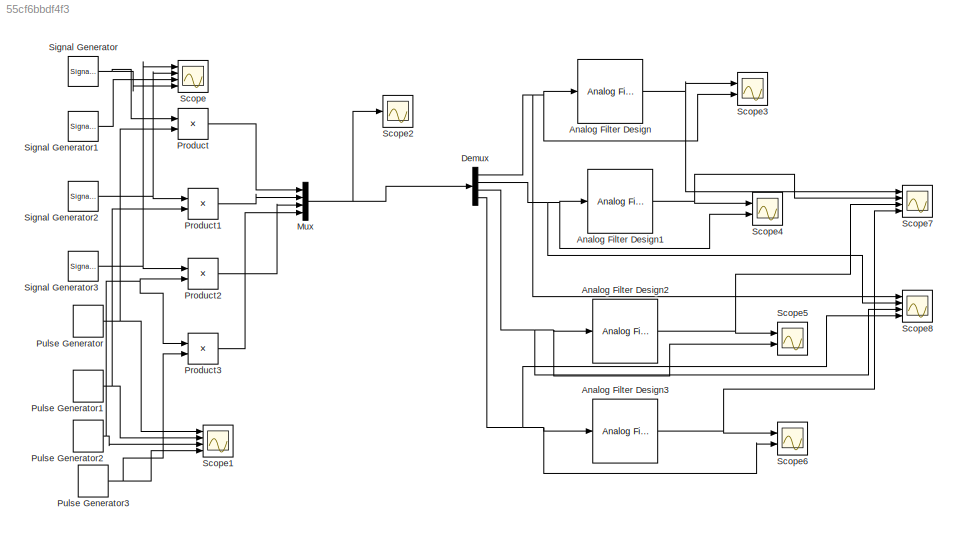
MODEL slx_55cf6bbdf4f3
KIND model
CONFIG AbsTol = auto
CONFIG EnableMultiTasking = off
CONFIG FixedStep = auto
CONFIG MaxStep = auto
CONFIG MinStep = auto
CONFIG RelTol = 1e-3
CONFIG SampleTimeConstraint = Unconstrained
CONFIG Solver = VariableStepAuto
CONFIG SolverName = VariableStepAuto
CONFIG StartTime = 0.0
CONFIG StopTime = 10.0
BLOCK [Reference] Analog Filter Design  REF=dsparch4/Analog
Filter Design
  Ports = [1, 1]
  SourceBlock = dsparch4/Analog\nFilter Design
  SourceProductBaseCode = DS
  SourceProductName = DSP System Toolbox
  SourceType = Analog Filter Design
BLOCK [Reference] Analog Filter Design1  REF=dsparch4/Analog
Filter Design
  Ports = [1, 1]
  SourceBlock = dsparch4/Analog\nFilter Design
  SourceProductBaseCode = DS
  SourceProductName = DSP System Toolbox
  SourceType = Analog Filter Design
BLOCK [Reference] Analog Filter Design2  REF=dsparch4/Analog
Filter Design
  Ports = [1, 1]
  SourceBlock = dsparch4/Analog\nFilter Design
  SourceProductBaseCode = DS
  SourceProductName = DSP System Toolbox
  SourceType = Analog Filter Design
BLOCK [Reference] Analog Filter Design3  REF=dsparch4/Analog
Filter Design
  Ports = [1, 1]
  SourceBlock = dsparch4/Analog\nFilter Design
  SourceProductBaseCode = DS
  SourceProductName = DSP System Toolbox
  SourceType = Analog Filter Design
BLOCK [Demux] Demux
  DisplayOption = bar
  Ports = [1, 4]
BLOCK [Mux] Mux
  DisplayOption = bar
  Ports = [4, 1]
BLOCK [Product] Product
  InputSameDT = off
  OutDataTypeStr = Inherit: Inherit via internal rule
  Ports = [2, 1]
  RndMeth = Floor
  SaturateOnIntegerOverflow = off
BLOCK [Product] Product1
  InputSameDT = off
  OutDataTypeStr = Inherit: Inherit via internal rule
  Ports = [2, 1]
  RndMeth = Floor
  SaturateOnIntegerOverflow = off
BLOCK [Product] Product2
  InputSameDT = off
  OutDataTypeStr = Inherit: Inherit via internal rule
  Ports = [2, 1]
  RndMeth = Floor
  SaturateOnIntegerOverflow = off
BLOCK [Product] Product3
  InputSameDT = off
  OutDataTypeStr = Inherit: Inherit via internal rule
  Ports = [2, 1]
  RndMeth = Floor
  SaturateOnIntegerOverflow = off
BLOCK [DiscretePulseGenerator] Pulse Generator
  Amplitude = 0.1
  Period = 0.1
  Ports = [0, 1]
  PulseType = Time based
  PulseWidth = 5
BLOCK [DiscretePulseGenerator] Pulse Generator1
  Amplitude = 0.2
  Period = 0.1
  Ports = [0, 1]
  PulseType = Time based
  PulseWidth = 5
BLOCK [DiscretePulseGenerator] Pulse Generator2
  Amplitude = 0.3
  Period = 0.1
  Ports = [0, 1]
  PulseType = Time based
  PulseWidth = 5
BLOCK [DiscretePulseGenerator] Pulse Generator3
  Amplitude = 0.4
  Period = 0.1
  Ports = [0, 1]
  PulseType = Time based
  PulseWidth = 5
BLOCK [Scope] Scope
  Floating = off
  NumInputPorts = 4
  Ports = [4]
  ScopeSpecificationString = Simulink.scopes.TimeScopeBlockCfg('CurrentConfiguration', extmgr.ConfigurationSet(extmgr.Configuration('Core','General UI',true),extmgr.Configuration('Core','Source UI',true),extmgr.Configuration('Sources','WiredSimulink',true),extmgr.Configuration('Visuals','Time Domain',true,'SerializedDisplays',{struct('MinYLimReal','-31.41585','MaxYLimReal','31.41575','YLabelReal','','MinYLimMag','0.00000','Ma...<+1402ch>
BLOCK [Scope] Scope1
  Floating = off
  NumInputPorts = 4
  Ports = [4]
  ScopeSpecificationString = Simulink.scopes.TimeScopeBlockCfg('CurrentConfiguration', extmgr.ConfigurationSet(extmgr.Configuration('Core','General UI',true),extmgr.Configuration('Core','Source UI',true),extmgr.Configuration('Sources','WiredSimulink',true,'DataLoggingVariableName','ScopeData1'),extmgr.Configuration('Visuals','Time Domain',true,'SerializedDisplays',{struct('MinYLimReal','-0.05','MaxYLimReal','0.45','YLabelReal...<+1413ch>
BLOCK [Scope] Scope2
  Floating = off
  NumInputPorts = 1
  Ports = [1]
  ScopeSpecificationString = Simulink.scopes.TimeScopeBlockCfg('CurrentConfiguration', extmgr.ConfigurationSet(extmgr.Configuration('Core','General UI',true),extmgr.Configuration('Core','Source UI',true),extmgr.Configuration('Sources','WiredSimulink',true,'DataLoggingVariableName','ScopeData2'),extmgr.Configuration('Visuals','Time Domain',true,'SerializedDisplays',{struct('MinYLimReal','-9.42373','MaxYLimReal','9.42109','YLab...<+1399ch>
BLOCK [Scope] Scope3
  Floating = off
  NumInputPorts = 2
  Ports = [2]
  ScopeSpecificationString = Simulink.scopes.TimeScopeBlockCfg('CurrentConfiguration', extmgr.ConfigurationSet(extmgr.Configuration('Core','General UI',true),extmgr.Configuration('Core','Source UI',true),extmgr.Configuration('Sources','WiredSimulink',true,'DataLoggingVariableName','ScopeData3'),extmgr.Configuration('Visuals','Time Domain',true,'SerializedDisplays',{struct('MinYLimReal','-0.78531','MaxYLimReal','0.78509','YLab...<+1389ch>
BLOCK [Scope] Scope4
  Floating = off
  NumInputPorts = 2
  Ports = [2]
  ScopeSpecificationString = Simulink.scopes.TimeScopeBlockCfg('CurrentConfiguration', extmgr.ConfigurationSet(extmgr.Configuration('Core','General UI',true),extmgr.Configuration('Core','Source UI',true),extmgr.Configuration('Sources','WiredSimulink',true,'DataLoggingVariableName','ScopeData4'),extmgr.Configuration('Visuals','Time Domain',true,'SerializedDisplays',{struct('MinYLimReal','-4.71186','MaxYLimReal','4.71054','YLab...<+1390ch>
BLOCK [Scope] Scope5
  Floating = off
  NumInputPorts = 2
  Ports = [2]
  ScopeSpecificationString = Simulink.scopes.TimeScopeBlockCfg('CurrentConfiguration', extmgr.ConfigurationSet(extmgr.Configuration('Core','General UI',true),extmgr.Configuration('Core','Source UI',true),extmgr.Configuration('Sources','WiredSimulink',true,'DataLoggingVariableName','ScopeData5'),extmgr.Configuration('Visuals','Time Domain',true,'SerializedDisplays',{struct('MinYLimReal','-9.42373','MaxYLimReal','9.42109','YLab...<+1390ch>
BLOCK [Scope] Scope6
  Floating = off
  NumInputPorts = 2
  Ports = [2]
  ScopeSpecificationString = Simulink.scopes.TimeScopeBlockCfg('CurrentConfiguration', extmgr.ConfigurationSet(extmgr.Configuration('Core','General UI',true),extmgr.Configuration('Core','Source UI',true),extmgr.Configuration('Sources','WiredSimulink',true,'DataLoggingVariableName','ScopeData6'),extmgr.Configuration('Visuals','Time Domain',true,'SerializedDisplays',{struct('MinYLimReal','-0.015','MaxYLimReal','0.135','YLabelRe...<+1378ch>
BLOCK [Scope] Scope7
  Floating = off
  NumInputPorts = 4
  Ports = [4]
  ScopeSpecificationString = Simulink.scopes.TimeScopeBlockCfg('CurrentConfiguration', extmgr.ConfigurationSet(extmgr.Configuration('Core','General UI',true),extmgr.Configuration('Core','Source UI',true),extmgr.Configuration('Sources','WiredSimulink',true,'DataLoggingVariableName','ScopeData7'),extmgr.Configuration('Visuals','Time Domain',true,'SerializedDisplays',{struct('MinYLimReal','-0.47127','MaxYLimReal','0.47122','YLab...<+1451ch>
BLOCK [Scope] Scope8
  Floating = off
  NumInputPorts = 4
  Ports = [4]
  ScopeSpecificationString = Simulink.scopes.TimeScopeBlockCfg('CurrentConfiguration', extmgr.ConfigurationSet(extmgr.Configuration('Core','General UI',true),extmgr.Configuration('Core','Source UI',true),extmgr.Configuration('Sources','WiredSimulink',true,'DataLoggingVariableName','ScopeData8'),extmgr.Configuration('Visuals','Time Domain',true,'SerializedDisplays',{struct('MinYLimReal','-9.42373','MaxYLimReal','9.42109','YLab...<+1396ch>
BLOCK [SignalGenerator] Signal Generator
  Amplitude = 2*pi
  Ports = [0, 1]
  Units = rad/sec
BLOCK [SignalGenerator] Signal Generator1
  Amplitude = 4*pi
  Ports = [0, 1]
  Units = rad/sec
BLOCK [SignalGenerator] Signal Generator2
  Amplitude = 6*pi
  Ports = [0, 1]
  Units = rad/sec
BLOCK [SignalGenerator] Signal Generator3
  Amplitude = 8*pi
  Ports = [0, 1]
  Units = rad/sec
NET Analog Filter Design1:1 -> Scope4:1, Scope7:2
NET Analog Filter Design2:1 -> Scope5:1, Scope7:3
NET Analog Filter Design3:1 -> Scope6:1, Scope7:4
NET Analog Filter Design:1 -> Scope3:1, Scope7:1
NET Demux:1 -> Analog Filter Design:1, Scope3:2, Scope8:1
NET Demux:2 -> Analog Filter Design1:1, Scope4:2, Scope8:2
NET Demux:3 -> Analog Filter Design2:1, Scope5:2, Scope8:3
NET Demux:4 -> Analog Filter Design3:1, Scope6:2, Scope8:4
NET Mux:1 -> Demux:1, Scope2:1
LINE Product1:1 -> Mux:2
LINE Product2:1 -> Mux:3
LINE Product3:1 -> Mux:4
LINE Product:1 -> Mux:1
NET Pulse Generator1:1 -> Product1:2, Scope1:2
NET Pulse Generator2:1 -> Product2:2, Product3:1, Scope1:3
NET Pulse Generator3:1 -> Product3:2, Scope1:4
NET Pulse Generator:1 -> Product:2, Scope1:1
LINE Signal Generator1:1 -> Scope:3
NET Signal Generator2:1 -> Product1:1, Scope:2
NET Signal Generator3:1 -> Product2:1, Scope:1
NET Signal Generator:1 -> Product:1, Scope:4
note: NET lines group one-source signal fan-out (src -> all destinations, sorted); 1:1 wires keep LINE
